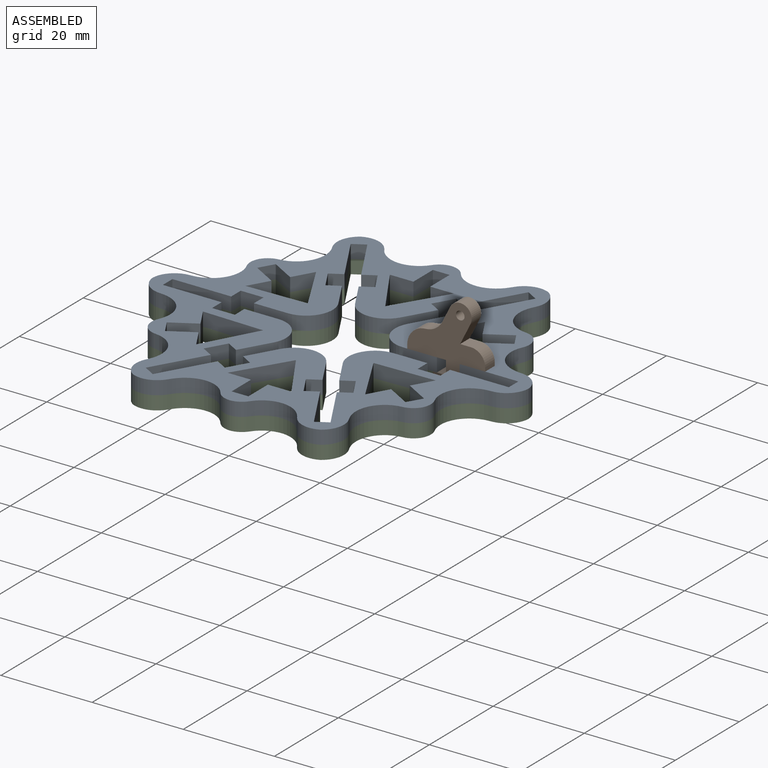
[diagram: assembled view]
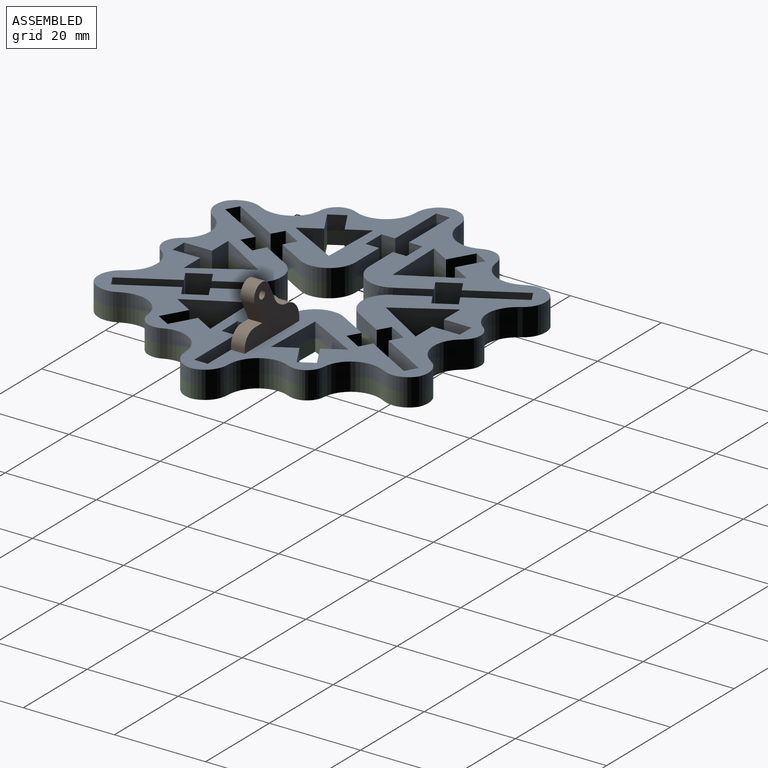
[diagram: assembled view, second angle]
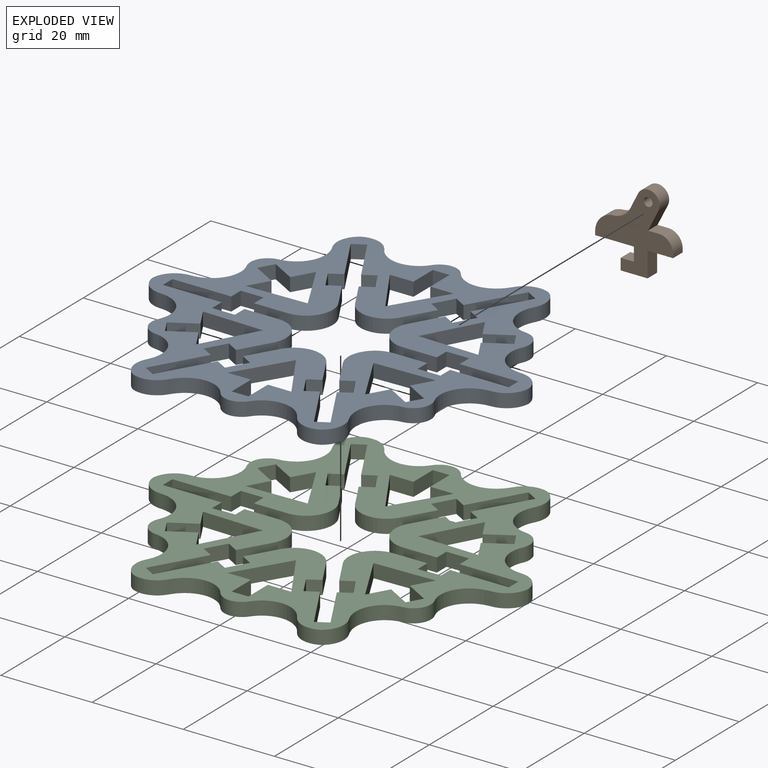
[diagram: exploded view]
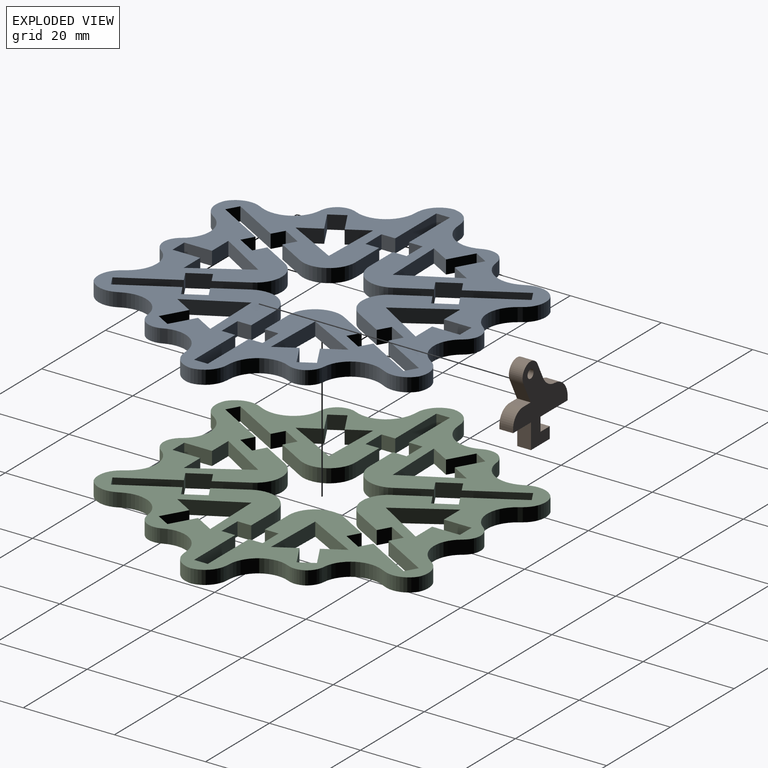
[diagram: exploded view, second angle]
ASSEMBLY  parts=3 mates=2
PART A: 176 faces, bbox 82.4x72.4x3 mm
  f0: plane 82.45x72.42mm, normal (0,0,1), area 2192.5mm2, adj f2,f3,f4,f5,f6,f7,f8,f9
  f1: plane 82.45x72.42mm, normal (0,0,-1), area 2192.5mm2, adj f2,f3,f4,f5,f6,f7,f8,f9
  f2: plane 3x2.6mm, normal (-0.5,-0.87,0), area 9mm2, adj f0,f1,f3,f67
  f3: plane 6.43x3.71mm, normal (-0.87,0.5,0), area 22.3mm2, adj f0,f1,f2,f68
  f4: plane 6.43x3.71mm, normal (0.87,0.5,0), area 22.3mm2, adj f0,f1,f5,f68
  f5: plane 3x2.6mm, normal (0.5,-0.87,0), area 9mm2, adj f0,f1,f4,f6
  f6: plane 4.33x3mm, normal (0.87,0.5,0), area 15mm2, adj f0,f1,f5,f7
  f7: plane 3x2.6mm, normal (-0.5,0.87,0), area 9mm2, adj f0,f1,f6,f8
  f8: plane 11.17x6.45mm, normal (0.87,0.5,0), area 38.7mm2, adj f0,f1,f7,f9
  f9: plane 3x2.6mm, normal (-0.5,0.87,0), area 9mm2, adj f0,f1,f8,f10
  f10: plane 11.17x6.45mm, normal (-0.87,-0.5,0), area 38.7mm2, adj f0,f1,f9,f11
  f11: plane 3x2.6mm, normal (-0.5,0.87,0), area 9mm2, adj f0,f1,f10,f12
  f12: plane 4.33x3mm, normal (-0.87,-0.5,0), area 15mm2, adj f0,f1,f11,f13
  f13: plane 3x2.6mm, normal (0.5,-0.87,0), area 9mm2, adj f0,f1,f12,f14
  f14: plane 6.43x3.71mm, normal (-0.87,-0.5,0), area 22.3mm2, adj f0,f1,f13,f73
  f15: plane 7.42x3mm, normal (0,1,0), area 22.3mm2, adj f0,f1,f16,f73
  f16: plane 3x3mm, normal (1,0,0), area 9mm2, adj f0,f1,f15,f17
  f17: plane 5x3mm, normal (0,1,0), area 15mm2, adj f0,f1,f16,f18
  f18: plane 3x3mm, normal (-1,0,0), area 9mm2, adj f0,f1,f17,f19
  f19: plane 12.89x3mm, normal (0,1,0), area 38.7mm2, adj f0,f1,f18,f20
  f20: plane 3x3mm, normal (-1,0,0), area 9mm2, adj f0,f1,f19,f21
  f21: plane 12.89x3mm, normal (0,-1,0), area 38.7mm2, adj f0,f1,f20,f22
  f22: plane 3x3mm, normal (-1,0,0), area 9mm2, adj f0,f1,f21,f23
  f23: plane 5x3mm, normal (0,-1,0), area 15mm2, adj f0,f1,f22,f24
  f24: plane 3x3mm, normal (1,0,0), area 9mm2, adj f0,f1,f23,f25
  f25: plane 7.42x3mm, normal (0,-1,0), area 22.3mm2, adj f0,f1,f24,f72
  f26: plane 6.43x3.71mm, normal (-0.87,0.5,0), area 22.3mm2, adj f0,f1,f27,f72
  f27: plane 3x2.6mm, normal (0.5,0.87,0), area 9mm2, adj f0,f1,f26,f28
  f28: plane 4.33x3mm, normal (-0.87,0.5,0), area 15mm2, adj f0,f1,f27,f29
  f29: plane 3x2.6mm, normal (-0.5,-0.87,0), area 9mm2, adj f0,f1,f28,f30
  f30: plane 11.17x6.45mm, normal (-0.87,0.5,0), area 38.7mm2, adj f0,f1,f29,f31
  f31: plane 3x2.6mm, normal (-0.5,-0.87,0), area 9mm2, adj f0,f1,f30,f32
  f32: plane 11.17x6.45mm, normal (0.87,-0.5,0), area 38.7mm2, adj f0,f1,f31,f33
  f33: plane 3x2.6mm, normal (-0.5,-0.87,0), area 9mm2, adj f0,f1,f32,f34
  f34: plane 4.33x3mm, normal (0.87,-0.5,0), area 15mm2, adj f0,f1,f33,f35
  f35: plane 3x2.6mm, normal (0.5,0.87,0), area 9mm2, adj f0,f1,f34,f36
  f36: plane 6.43x3.71mm, normal (0.87,-0.5,0), area 22.3mm2, adj f0,f1,f35,f71
  f37: plane 6.43x3.71mm, normal (-0.87,-0.5,0), area 22.3mm2, adj f0,f1,f38,f71
  f38: plane 3x2.6mm, normal (-0.5,0.87,0), area 9mm2, adj f0,f1,f37,f39
  f39: plane 4.33x3mm, normal (-0.87,-0.5,0), area 15mm2, adj f0,f1,f38,f40
  f40: plane 3x2.6mm, normal (0.5,-0.87,0), area 9mm2, adj f0,f1,f39,f41
  f41: plane 11.17x6.45mm, normal (-0.87,-0.5,0), area 38.7mm2, adj f0,f1,f40,f42
  f42: plane 3x2.6mm, normal (0.5,-0.87,0), area 9mm2, adj f0,f1,f41,f43
  f43: plane 11.17x6.45mm, normal (0.87,0.5,0), area 38.7mm2, adj f0,f1,f42,f44
  f44: plane 3x2.6mm, normal (0.5,-0.87,0), area 9mm2, adj f0,f1,f43,f45
  f45: plane 4.33x3mm, normal (0.87,0.5,0), area 15mm2, adj f0,f1,f44,f46
  f46: plane 3x2.6mm, normal (-0.5,0.87,0), area 9mm2, adj f0,f1,f45,f47
  f47: plane 6.43x3.71mm, normal (0.87,0.5,0), area 22.3mm2, adj f0,f1,f46,f70
  f48: plane 7.42x3mm, normal (0,-1,0), area 22.3mm2, adj f0,f1,f49,f70
  f49: plane 3x3mm, normal (-1,0,0), area 9mm2, adj f0,f1,f48,f50
  f50: plane 5x3mm, normal (0,-1,0), area 15mm2, adj f0,f1,f49,f51
  f51: plane 3x3mm, normal (1,0,0), area 9mm2, adj f0,f1,f50,f52
  f52: plane 12.89x3mm, normal (0,-1,0), area 38.7mm2, adj f0,f1,f51,f53
  f53: plane 3x3mm, normal (1,0,0), area 9mm2, adj f0,f1,f52,f54
  f54: plane 12.89x3mm, normal (0,1,0), area 38.7mm2, adj f0,f1,f53,f55
  f55: plane 3x3mm, normal (1,0,0), area 9mm2, adj f0,f1,f54,f56
  f56: plane 5x3mm, normal (0,1,0), area 15mm2, adj f0,f1,f55,f57
  f57: plane 3x3mm, normal (-1,0,0), area 9mm2, adj f0,f1,f56,f58
  f58: plane 7.42x3mm, normal (0,1,0), area 22.3mm2, adj f0,f1,f57,f69
  f59: plane 6.43x3.71mm, normal (0.87,-0.5,0), area 22.3mm2, adj f0,f1,f60,f69
  f60: plane 3x2.6mm, normal (-0.5,-0.87,0), area 9mm2, adj f0,f1,f59,f61
  f61: plane 4.33x3mm, normal (0.87,-0.5,0), area 15mm2, adj f0,f1,f60,f62
  f62: plane 3x2.6mm, normal (0.5,0.87,0), area 9mm2, adj f0,f1,f61,f63
  f63: plane 11.17x6.45mm, normal (0.87,-0.5,0), area 38.7mm2, adj f0,f1,f62,f64
  f64: plane 3x2.6mm, normal (0.5,0.87,0), area 9mm2, adj f0,f1,f63,f65
  f65: plane 11.17x6.45mm, normal (-0.87,0.5,0), area 38.7mm2, adj f0,f1,f64,f66
  f66: plane 3x2.6mm, normal (0.5,0.87,0), area 9mm2, adj f0,f1,f65,f67
  f67: plane 4.33x3mm, normal (-0.87,0.5,0), area 15mm2, adj f0,f1,f2,f66
  f68: cylinder r=5.8mm len=10.05mm, axis (0,0,1), area 36.4mm2, adj f0,f1,f3,f4
  f69: cylinder r=5.8mm len=8.7mm, axis (0,0,1), area 36.4mm2, adj f0,f1,f58,f59
  f70: cylinder r=5.8mm len=8.7mm, axis (0,0,1), area 36.4mm2, adj f0,f1,f47,f48
  f71: cylinder r=5.8mm len=10.05mm, axis (0,0,1), area 36.4mm2, adj f0,f1,f36,f37
  f72: cylinder r=5.8mm len=8.7mm, axis (0,0,1), area 36.4mm2, adj f0,f1,f25,f26
  f73: cylinder r=5.8mm len=8.7mm, axis (0,0,1), area 36.4mm2, adj f0,f1,f14,f15
  f74: plane 6.08x3mm, normal (1,0,0), area 18.2mm2, adj f0,f1,f75,f80
  f75: plane 3.68x3mm, normal (0,1,0), area 11.1mm2, adj f0,f1,f74,f76
  f76: plane 6.08x3mm, normal (-1,0,0), area 18.2mm2, adj f0,f1,f75,f77
  f77: plane 5.16x3mm, normal (0,1,0), area 15.5mm2, adj f0,f1,f76,f78
  f78: plane 11.45x7.01mm, normal (-0.85,-0.52,0), area 40.3mm2, adj f0,f1,f77,f79
  f79: plane 11.45x7.01mm, normal (0.85,-0.52,0), area 40.3mm2, adj f0,f1,f78,f80
  f80: plane 5.16x3mm, normal (0,1,0), area 15.5mm2, adj f0,f1,f74,f79
  f81: plane 4.47x3mm, normal (0.87,0.5,0), area 15.5mm2, adj f0,f1,f82,f87
  f82: plane 5.27x3.04mm, normal (0.5,-0.87,0), area 18.2mm2, adj f0,f1,f81,f83
  f83: plane 3.19x3mm, normal (0.87,0.5,0), area 11.1mm2, adj f0,f1,f82,f84
  f84: plane 5.27x3.04mm, normal (-0.5,0.87,0), area 18.2mm2, adj f0,f1,f83,f85
  f85: plane 4.47x3mm, normal (0.87,0.5,0), area 15.5mm2, adj f0,f1,f84,f86
  f86: plane 11.79x6.42mm, normal (-0.88,0.48,0), area 40.3mm2, adj f0,f1,f85,f87
  f87: plane 13.42x3mm, normal (-0.03,-1,0), area 40.3mm2, adj f0,f1,f81,f86
  f88: plane 4.47x3mm, normal (0.87,-0.5,0), area 15.5mm2, adj f0,f1,f89,f94
  f89: plane 5.27x3.04mm, normal (-0.5,-0.87,0), area 18.2mm2, adj f0,f1,f88,f90
  f90: plane 3.19x3mm, normal (0.87,-0.5,0), area 11.1mm2, adj f0,f1,f89,f91
  f91: plane 5.27x3.04mm, normal (0.5,0.87,0), area 18.2mm2, adj f0,f1,f90,f92
  f92: plane 4.47x3mm, normal (0.87,-0.5,0), area 15.5mm2, adj f0,f1,f91,f93
  f93: plane 13.42x3mm, normal (-0.03,1,0), area 40.3mm2, adj f0,f1,f92,f94
  f94: plane 11.79x6.42mm, normal (-0.88,-0.48,0), area 40.3mm2, adj f0,f1,f88,f93
  f95: plane 5.16x3mm, normal (0,-1,0), area 15.5mm2, adj f0,f1,f96,f101
  f96: plane 6.08x3mm, normal (-1,0,0), area 18.2mm2, adj f0,f1,f95,f97
  f97: plane 3.68x3mm, normal (0,-1,0), area 11.1mm2, adj f0,f1,f96,f98
  f98: plane 6.08x3mm, normal (1,0,0), area 18.2mm2, adj f0,f1,f97,f99
  f99: plane 5.16x3mm, normal (0,-1,0), area 15.5mm2, adj f0,f1,f98,f100
  f100: plane 11.45x7.01mm, normal (0.85,0.52,0), area 40.3mm2, adj f0,f1,f99,f101
  f101: plane 11.45x7.01mm, normal (-0.85,0.52,0), area 40.3mm2, adj f0,f1,f95,f100
  f102: plane 4.47x3mm, normal (-0.87,-0.5,0), area 15.5mm2, adj f0,f1,f103,f108
  f103: plane 5.27x3.04mm, normal (-0.5,0.87,0), area 18.2mm2, adj f0,f1,f102,f104
  f104: plane 3.19x3mm, normal (-0.87,-0.5,0), area 11.1mm2, adj f0,f1,f103,f105
  f105: plane 5.27x3.04mm, normal (0.5,-0.87,0), area 18.2mm2, adj f0,f1,f104,f106
  f106: plane 4.47x3mm, normal (-0.87,-0.5,0), area 15.5mm2, adj f0,f1,f105,f107
  f107: plane 11.79x6.42mm, normal (0.88,-0.48,0), area 40.3mm2, adj f0,f1,f106,f108
  f108: plane 13.42x3mm, normal (0.03,1,0), area 40.3mm2, adj f0,f1,f102,f107
  f109: plane 5.27x3.04mm, normal (-0.5,-0.87,0), area 18.2mm2, adj f0,f1,f110,f115
  f110: plane 4.47x3mm, normal (-0.87,0.5,0), area 15.5mm2, adj f0,f1,f109,f111
  f111: plane 13.42x3mm, normal (0.03,-1,0), area 40.3mm2, adj f0,f1,f110,f112
  f112: plane 11.79x6.42mm, normal (0.88,0.48,0), area 40.3mm2, adj f0,f1,f111,f113
  f113: plane 4.47x3mm, normal (-0.87,0.5,0), area 15.5mm2, adj f0,f1,f112,f114
  f114: plane 5.27x3.04mm, normal (0.5,0.87,0), area 18.2mm2, adj f0,f1,f113,f115
  f115: plane 3.19x3mm, normal (-0.87,0.5,0), area 11.1mm2, adj f0,f1,f109,f114
  f116: plane 3x0.93mm, normal (0.08,1,0), area 2.8mm2, adj f0,f1,f129,f140
  f117: plane 3x0.93mm, normal (0.08,-1,0), area 2.8mm2, adj f0,f1,f128,f141
  f118: plane 3x0.84mm, normal (0.9,0.43,0), area 2.8mm2, adj f0,f1,f131,f142
  f119: plane 3x0.76mm, normal (-0.82,-0.57,0), area 2.8mm2, adj f0,f1,f130,f143
  f120: plane 3x0.76mm, normal (0.82,-0.57,0), area 2.8mm2, adj f0,f1,f133,f144
  f121: plane 3x0.84mm, normal (-0.9,0.43,0), area 2.8mm2, adj f0,f1,f132,f145
  f122: plane 3x0.93mm, normal (-0.08,-1,0), area 2.8mm2, adj f0,f1,f135,f146
  f123: plane 3x0.93mm, normal (-0.08,1,0), area 2.8mm2, adj f0,f1,f134,f147
  f124: plane 3x0.84mm, normal (-0.9,-0.43,0), area 2.8mm2, adj f0,f1,f137,f148
  f125: plane 3x0.76mm, normal (0.82,0.57,0), area 2.8mm2, adj f0,f1,f136,f149
  f126: plane 3x0.76mm, normal (-0.82,0.57,0), area 2.8mm2, adj f0,f1,f139,f150
  f127: plane 3x0.84mm, normal (0.9,-0.43,0), area 2.8mm2, adj f0,f1,f138,f151
  f128: cylinder r=5.02mm len=4.66mm, axis (0,0,-1), area 21.4mm2, adj f0,f1,f117,f129
  f129: cylinder r=5.02mm len=4.66mm, axis (0,0,1), area 21.4mm2, adj f0,f1,f116,f128
  f130: cylinder r=5.02mm len=6.33mm, axis (0,0,1), area 21.4mm2, adj f0,f1,f119,f131
  f131: cylinder r=5.02mm len=6.3mm, axis (0,0,-1), area 21.4mm2, adj f0,f1,f118,f130
  f132: cylinder r=5.02mm len=6.3mm, axis (0,0,-1), area 21.4mm2, adj f0,f1,f121,f133
  f133: cylinder r=5.02mm len=6.33mm, axis (0,0,1), area 21.4mm2, adj f0,f1,f120,f132
  f134: cylinder r=5.02mm len=4.66mm, axis (0,0,-1), area 21.4mm2, adj f0,f1,f123,f135
  f135: cylinder r=5.02mm len=4.66mm, axis (0,0,1), area 21.4mm2, adj f0,f1,f122,f134
  f136: cylinder r=5.02mm len=6.33mm, axis (0,0,-1), area 21.4mm2, adj f0,f1,f125,f137
  f137: cylinder r=5.02mm len=6.3mm, axis (0,0,1), area 21.4mm2, adj f0,f1,f124,f136
  f138: cylinder r=5.02mm len=6.3mm, axis (0,0,-1), area 21.4mm2, adj f0,f1,f127,f139
  f139: cylinder r=5.02mm len=6.33mm, axis (0,0,1), area 21.4mm2, adj f0,f1,f126,f138
  f140: cylinder r=6.79mm len=3.85mm, axis (0,0,1), area 12.7mm2, adj f0,f1,f116,f164
  f141: cylinder r=6.79mm len=3.85mm, axis (0,0,-1), area 12.7mm2, adj f0,f1,f117,f165
  f142: cylinder r=6.79mm len=4.13mm, axis (0,0,1), area 12.7mm2, adj f0,f1,f118,f166
  f143: cylinder r=6.79mm len=3.31mm, axis (0,0,-1), area 12.7mm2, adj f0,f1,f119,f167
  f144: cylinder r=6.79mm len=3.31mm, axis (0,0,1), area 12.7mm2, adj f0,f1,f120,f168
  f145: cylinder r=6.79mm len=4.13mm, axis (0,0,-1), area 12.7mm2, adj f0,f1,f121,f169
  f146: cylinder r=6.79mm len=3.85mm, axis (0,0,1), area 12.7mm2, adj f0,f1,f122,f170
  f147: cylinder r=6.79mm len=3.85mm, axis (0,0,-1), area 12.7mm2, adj f0,f1,f123,f171
  f148: cylinder r=6.79mm len=4.13mm, axis (0,0,1), area 12.7mm2, adj f0,f1,f124,f172
  f149: cylinder r=6.79mm len=3.31mm, axis (0,0,-1), area 12.7mm2, adj f0,f1,f125,f173
  f150: cylinder r=6.79mm len=3.31mm, axis (0,0,1), area 12.7mm2, adj f0,f1,f126,f174
  f151: cylinder r=6.79mm len=4.13mm, axis (0,0,-1), area 12.7mm2, adj f0,f1,f127,f175
  f152: cylinder r=4.02mm len=3.1mm, axis (0,0,1), area 11.3mm2, adj f0,f1,f153,f175
  f153: cylinder r=4.02mm len=3.64mm, axis (0,0,-1), area 11.3mm2, adj f0,f1,f152,f164
  f154: cylinder r=4.02mm len=3.1mm, axis (0,0,1), area 11.3mm2, adj f0,f1,f155,f166
  f155: cylinder r=4.02mm len=3.64mm, axis (0,0,-1), area 11.3mm2, adj f0,f1,f154,f165
  f156: cylinder r=4.02mm len=3.21mm, axis (0,0,1), area 11.3mm2, adj f0,f1,f157,f168
  f157: cylinder r=4.02mm len=3.21mm, axis (0,0,-1), area 11.3mm2, adj f0,f1,f156,f167
  f158: cylinder r=4.02mm len=3.64mm, axis (0,0,1), area 11.3mm2, adj f0,f1,f159,f170
  f159: cylinder r=4.02mm len=3.1mm, axis (0,0,-1), area 11.3mm2, adj f0,f1,f158,f169
  f160: cylinder r=4.02mm len=3.1mm, axis (0,0,1), area 11.3mm2, adj f0,f1,f161,f172
  f161: cylinder r=4.02mm len=3.64mm, axis (0,0,-1), area 11.3mm2, adj f0,f1,f160,f171
  f162: cylinder r=4.02mm len=3.21mm, axis (0,0,1), area 11.3mm2, adj f0,f1,f163,f174
  f163: cylinder r=4.02mm len=3.21mm, axis (0,0,-1), area 11.3mm2, adj f0,f1,f162,f173
  f164: cylinder r=6.26mm len=7.43mm, axis (0,0,-1), area 24.5mm2, adj f0,f1,f140,f153
  f165: cylinder r=6.26mm len=7.43mm, axis (0,0,-1), area 24.5mm2, adj f0,f1,f141,f155
  f166: cylinder r=6.26mm len=5.63mm, axis (0,0,-1), area 24.5mm2, adj f0,f1,f142,f154
  f167: cylinder r=6.26mm len=7.23mm, axis (0,0,-1), area 24.5mm2, adj f0,f1,f143,f157
  f168: cylinder r=6.26mm len=7.23mm, axis (0,0,-1), area 24.5mm2, adj f0,f1,f144,f156
  f169: cylinder r=6.26mm len=5.63mm, axis (0,0,-1), area 24.5mm2, adj f0,f1,f145,f159
  f170: cylinder r=6.26mm len=7.43mm, axis (0,0,-1), area 24.5mm2, adj f0,f1,f146,f158
  f171: cylinder r=6.26mm len=7.43mm, axis (0,0,-1), area 24.5mm2, adj f0,f1,f147,f161
  f172: cylinder r=6.26mm len=5.63mm, axis (0,0,-1), area 24.5mm2, adj f0,f1,f148,f160
  f173: cylinder r=6.26mm len=7.23mm, axis (0,0,-1), area 24.5mm2, adj f0,f1,f149,f163
  f174: cylinder r=6.26mm len=7.23mm, axis (0,0,-1), area 24.5mm2, adj f0,f1,f150,f162
  f175: cylinder r=6.26mm len=5.63mm, axis (0,0,-1), area 24.5mm2, adj f0,f1,f151,f152
PART B: 21 faces, bbox 17.1x17.6x3 mm
  f0: plane 8.5x3mm, normal (0,-1,0), area 25.5mm2, adj f1,f12,f13,f14
  f1: plane 3x3mm, normal (-1,0,0), area 9mm2, adj f0,f2,f13,f14
  f2: plane 3x2.9mm, normal (0,1,0), area 8.7mm2, adj f1,f3,f13,f14
  f3: plane 3x2.5mm, normal (-1,0,0), area 7.5mm2, adj f2,f4,f13,f14
  f4: plane 5.9x3mm, normal (0,-1,0), area 17.7mm2, adj f3,f5,f13,f14
  f5: plane 5.5x3mm, normal (1,0,0), area 16.5mm2, adj f4,f6,f13,f14
  f6: plane 5.6x3mm, normal (0,-1,0), area 16.8mm2, adj f5,f7,f13,f14
  f7: plane 3x0.86mm, normal (1,0,0), area 2.6mm2, adj f6,f13,f14,f15
  f8: plane 3x2.36mm, normal (0,1,0), area 7.1mm2, adj f9,f13,f14,f15
  f9: plane 4.53x3mm, normal (0.89,-0.45,0), area 15.2mm2, adj f8,f13,f14,f18
  f10: plane 3x0.02mm, normal (0.45,0.89,0), area 0.1mm2, adj f13,f14,f18,f19
  f11: plane 3.42x3mm, normal (-0.89,0.45,0), area 11.5mm2, adj f13,f14,f17,f19
  f12: plane 3x0.82mm, normal (-1,0,0), area 2.5mm2, adj f0,f13,f14,f16
  f13: plane 17.65x17.1mm, normal (0,0,1), area 132.3mm2, adj f0,f1,f2,f3,f4,f5,f6,f7
  f14: plane 17.65x17.1mm, normal (0,0,-1), area 132.3mm2, adj f0,f1,f2,f3,f4,f5,f6,f7
  f15: cylinder r=3.14mm len=3.14mm, axis (0,0,-1), area 14.8mm2, adj f7,f8,f13,f14
  f16: cylinder r=4.18mm len=4.17mm, axis (0,0,-1), area 19.2mm2, adj f12,f13,f14,f17
  f17: cylinder r=4.29mm len=3.67mm, axis (0,0,-1), area 13.7mm2, adj f11,f13,f14,f16
  f18: cylinder r=2.49mm len=3.34mm, axis (0,0,-1), area 11.7mm2, adj f9,f10,f13,f14
  f19: cylinder r=2.49mm len=3.34mm, axis (0,0,-1), area 11.7mm2, adj f10,f11,f13,f14
  f20: cylinder r=0.95mm len=3mm, axis (0,0,1), area 17.9mm2, adj f13,f14
PART C: same geometry as A
PLACE A t=(-118.9,-3.68,100.87)mm fixed
PLACE B rot(axis=(1,0,0),90deg) t=(-98.83,0.82,103.87)mm
PLACE C t=(-118.9,-3.68,97.87)mm
MATE fastened A.f1 <-> C.f0  axis (0,0,-1) through (-118.9,-3.68,100.87)mm
MATE fastened B.f13 <-> A.f21  axis (0,-1,0) through (-93.84,-2.18,103.87)mm
